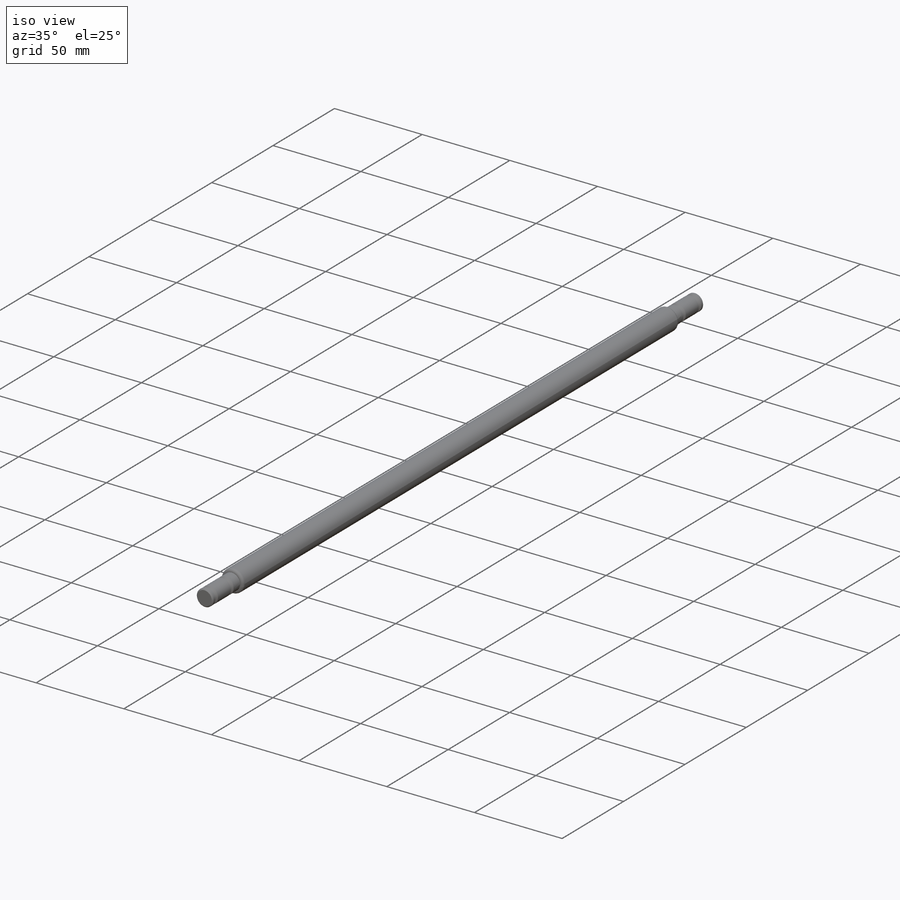
[diagram: iso view]
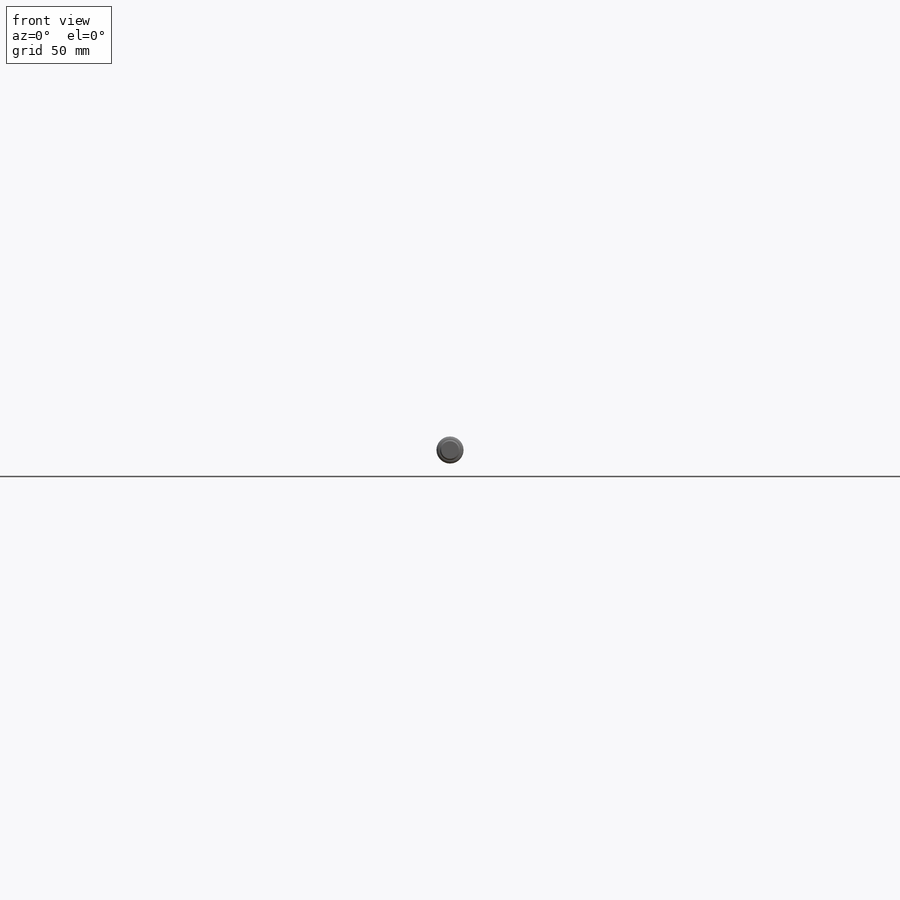
[diagram: front view]
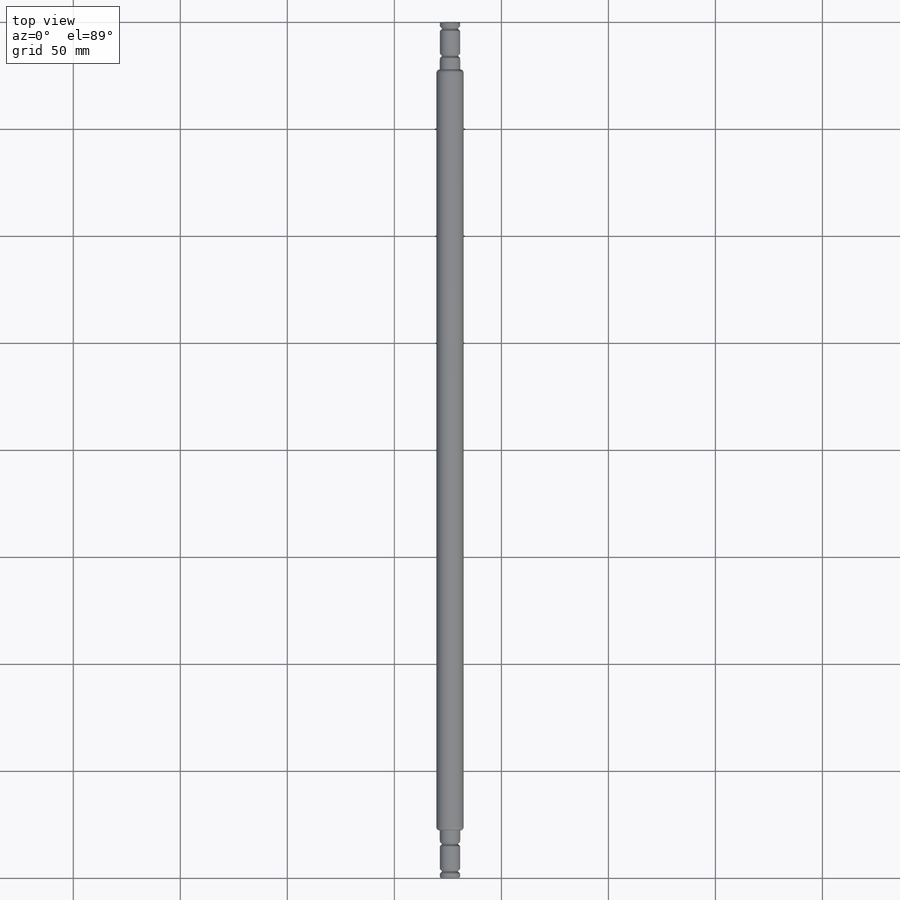
[diagram: top view]
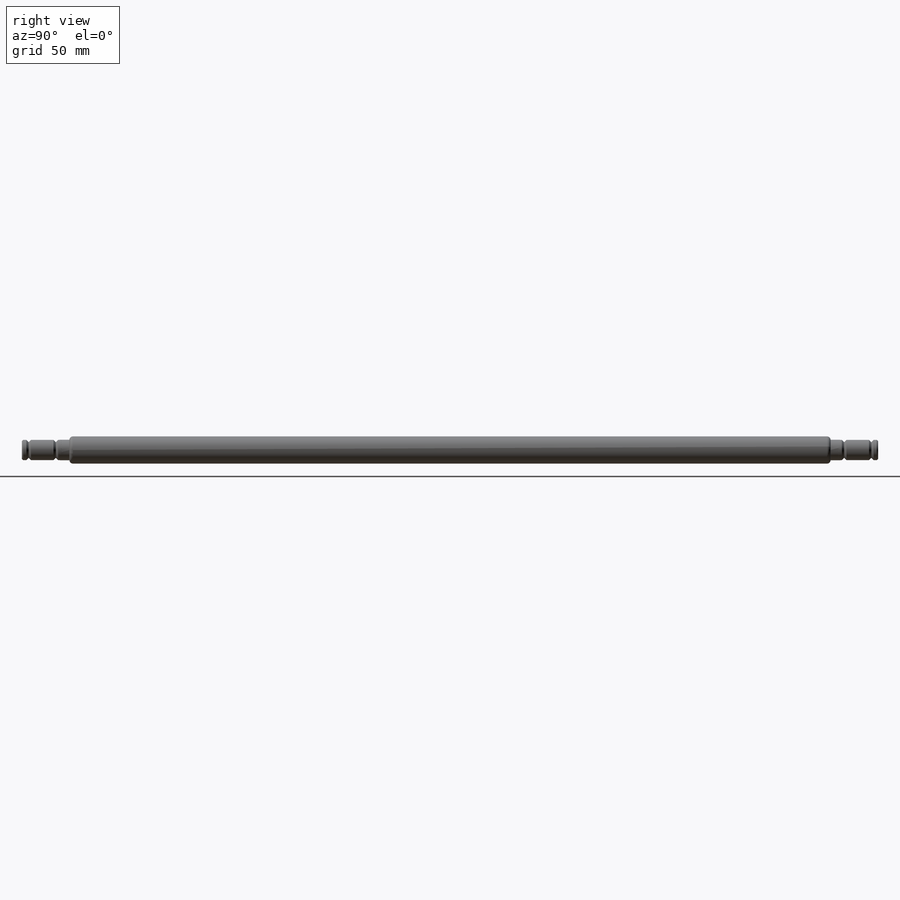
[diagram: right view]
SOLIDWORKS PART (.sldprt)
format: sldprt  version: not decoded by parser v0  size: 214,016 bytes
history: native  units: mm
features: sketch x4, extrude x2, mirror x2, material x1, plane x1, cut_revolve x1, fillet x1, move_body x1 + 1 further entry (+15 scaffold rows collapsed; 2 parser-record rows omitted)
feature tree (31):
  scaffold x15  (default folders/planes/origin — collapsed)
  material  "6061 Alloy"
  sketch  "Sketch1"  dims[D1=9.525mm]
  extrude  "Extrude1"  Depth=200.025mm
  sketch  "Sketch2"  dims[D1=12.7mm]
  extrude  "Extrude2"  Depth=177.8mm
  sketch  "Sketch3"
  plane  "Plane1"
  sketch  "Sketch4"  dims[c1.D1=8.9408mm c1.D2=25.654mm c1.D3=0.7366mm c2.D2=0.3175mm c2.D3=12.7mm c2.D4=6.35mm c2.D1=1.1938mm c3.D2=6.35mm c3.D4=2.3876mm c3.D1=3.81mm c4.D2=17.78mm]
  cut_revolve  "Cut-Revolve1"  Angle=360deg
  fillet  "Fillet1"  Radius=1.5875mm
  "505-ShaftSwivel"
  move_body  "Body-Move/Copy2"
  parser-record x2  (decoder bookkeeping rows leaked as tree rows — omitted from the tree; the rows remain in map.json)
  mirror  "Mirror1"
  mirror  "Mirror3"
decode coverage: 7 of 11 modeling features carry decoded parameters; 1 rows unclassified (native names shown)
note: suppression state not decoded; provenance and decode notes live in map.json
